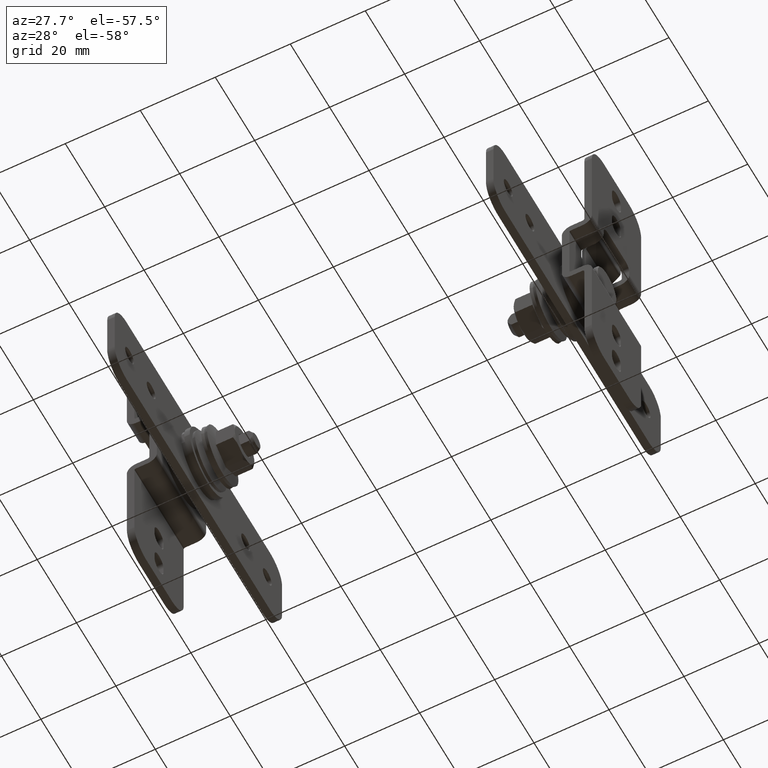
[diagram: clean part render]
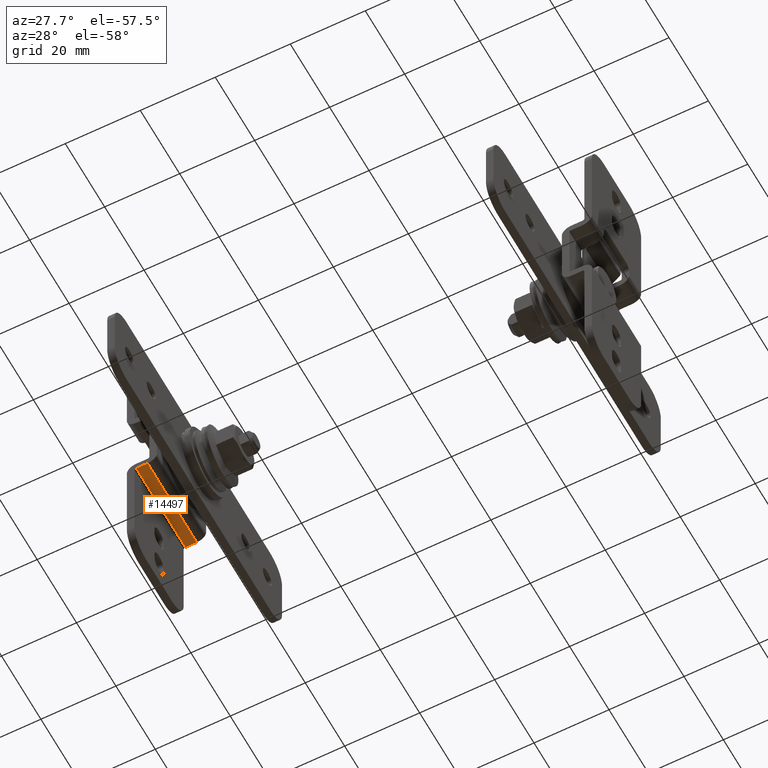
[diagram: same view with one face highlighted and labeled with its STEP entity id]
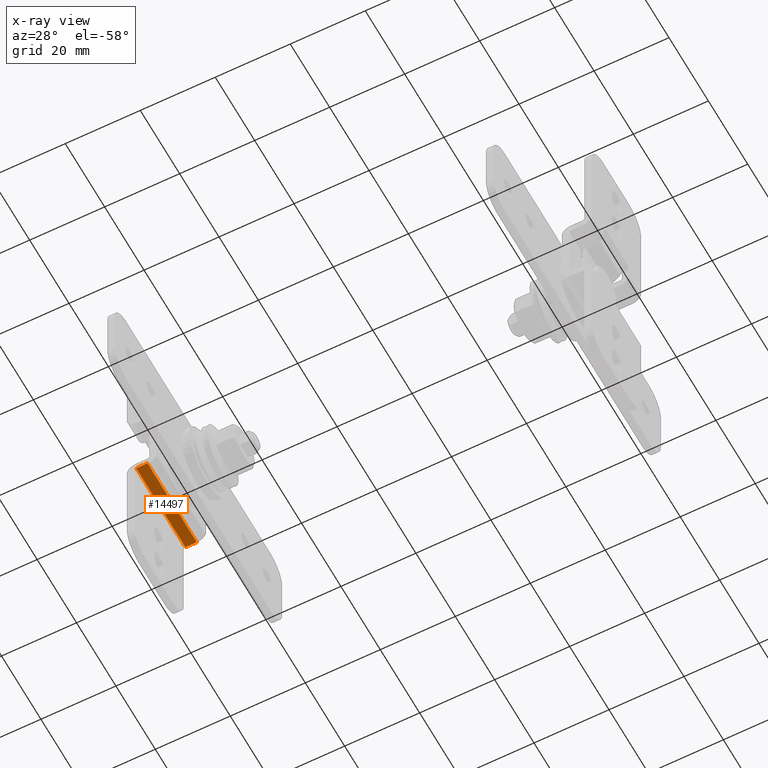
[diagram: x-ray of the same camera — body ghosted, the highlighted face saturated]
A machine part, auxiliary view. The second image highlights one B-rep face of the part: STEP entity #14497.
The next image is the same camera in x-ray: the body ghosted, the highlighted face saturated — about 0% of this face is hidden behind the body in this view.
In plain terms, the highlighted face is a freeform B-spline surface patch.
Its self-contained STEP definition (entity closure, byte-faithful):
#14431=CARTESIAN_POINT('',(5.500000000000000,-12.499999999999719,-11.0));
#14432=VERTEX_POINT('',#14431);
#14446=CARTESIAN_POINT('',(5.500000000000000,12.499999999999719,-11.0));
#14447=VERTEX_POINT('',#14446);
#14448=CARTESIAN_POINT('',(5.500000000000000,12.499999999999719,-11.0));
#14449=CARTESIAN_POINT('',(5.500000000000000,-12.499999999999719,-11.0));
#14450=QUASI_UNIFORM_CURVE('',1,(#14448,#14449),.UNSPECIFIED.,.F.,.U.);
#14451=EDGE_CURVE('',#14447,#14432,#14450,.T.);
#14470=CARTESIAN_POINT('',(5.649849994185417,-13.748749951544839,-11.0));
#14471=CARTESIAN_POINT('',(2.350149925348312,-13.748749951544839,-11.0));
#14472=CARTESIAN_POINT('',(5.649849994185417,13.748750622097090,-11.0));
#14473=CARTESIAN_POINT('',(2.350149925348312,13.748750622097090,-11.0));
#14474=B_SPLINE_SURFACE_WITH_KNOTS('',1,1,((#14470,#14472),(#14471,#14473)),.UNSPECIFIED.,.F.,.F.,.U.,(2,2),(2,2),(0.0,3.299700068837105),(0.0,27.497500573641929),.UNSPECIFIED.);
#14475=CARTESIAN_POINT('',(2.500000000000000,-12.499999999999719,-11.0));
#14476=VERTEX_POINT('',#14475);
#14477=CARTESIAN_POINT('',(2.500000000000000,-12.499999999999719,-11.0));
#14478=CARTESIAN_POINT('',(5.500000000000000,-12.499999999999719,-11.0));
#14479=QUASI_UNIFORM_CURVE('',1,(#14477,#14478),.UNSPECIFIED.,.F.,.U.);
#14480=EDGE_CURVE('',#14476,#14432,#14479,.T.);
#14481=ORIENTED_EDGE('',*,*,#14480,.F.);
#14482=CARTESIAN_POINT('',(2.500000000000000,12.499999999999719,-11.0));
#14483=VERTEX_POINT('',#14482);
#14484=CARTESIAN_POINT('',(2.500000000000000,12.499999999999719,-11.0));
#14485=CARTESIAN_POINT('',(2.500000000000000,-12.499999999999719,-11.0));
#14486=QUASI_UNIFORM_CURVE('',1,(#14484,#14485),.UNSPECIFIED.,.F.,.U.);
#14487=EDGE_CURVE('',#14483,#14476,#14486,.T.);
#14488=ORIENTED_EDGE('',*,*,#14487,.F.);
#14489=CARTESIAN_POINT('',(2.500000000000000,12.499999999999719,-11.0));
#14490=CARTESIAN_POINT('',(5.500000000000000,12.499999999999719,-11.0));
#14491=QUASI_UNIFORM_CURVE('',1,(#14489,#14490),.UNSPECIFIED.,.F.,.U.);
#14492=EDGE_CURVE('',#14483,#14447,#14491,.T.);
#14493=ORIENTED_EDGE('',*,*,#14492,.T.);
#14494=ORIENTED_EDGE('',*,*,#14451,.T.);
#14495=EDGE_LOOP('',(#14481,#14488,#14493,#14494));
#14496=FACE_OUTER_BOUND('',#14495,.T.);
#14497=ADVANCED_FACE('',(#14496),#14474,.T.);